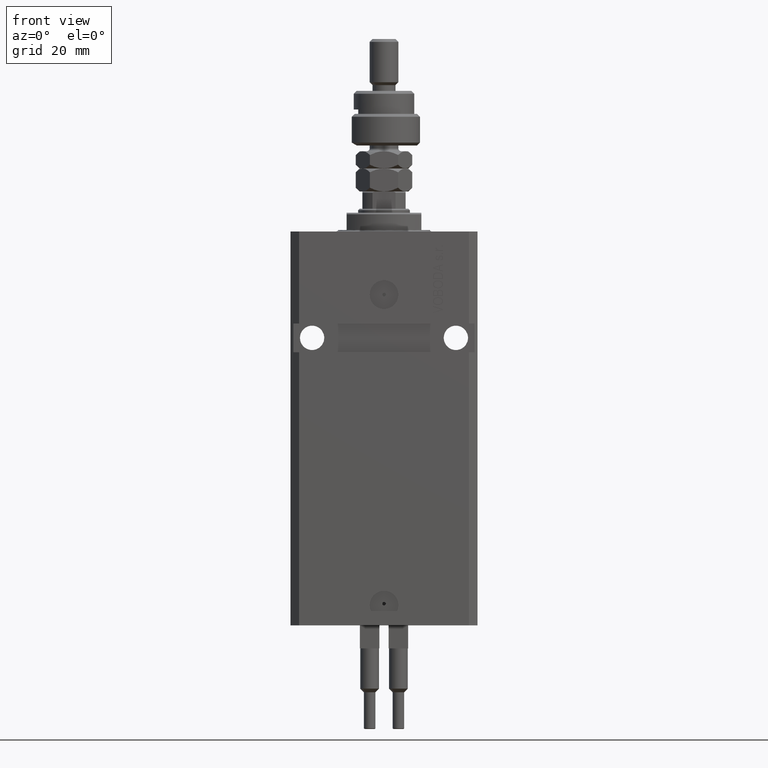
[diagram: clean part render]
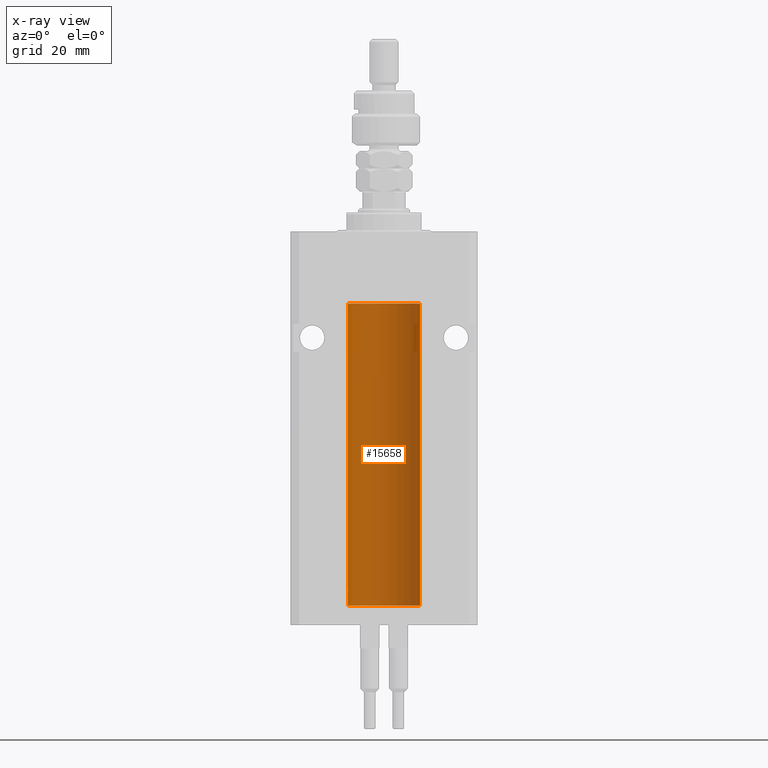
[diagram: x-ray — body ghosted, one internal face saturated and labeled with its STEP entity id]
A machine part, front view, then the same camera in x-ray: the body is ghosted and one INTERNAL B-rep face — a face not visible from any outside direction — is saturated and labeled: STEP entity #15658.
In plain terms, the highlighted cylindrical surface (edge-blend (fillet) strip) has radius 12.5 mm, axis along (0, 0, 1).
Its self-contained STEP definition (entity closure, byte-faithful):
#438 = DIRECTION ( 'NONE',  ( -0.000000000000000000, -0.000000000000000000, 1.000000000000000000 ) ) ;
#1190 = CARTESIAN_POINT ( 'NONE',  ( 12.50000000000000000, 0.000000000000000000, -25.10000000000000142 ) ) ;
#2139 = CARTESIAN_POINT ( 'NONE',  ( -12.48520330846398174, 0.6088355886774048376, -125.1632543185256310 ) ) ;
#2477 = FACE_OUTER_BOUND ( 'NONE', #42396, .T. ) ;
#2650 = CARTESIAN_POINT ( 'NONE',  ( -12.49631005746706691, 0.3253680783018559897, -125.5585674046538998 ) ) ;
#2895 = CARTESIAN_POINT ( 'NONE',  ( -12.48436813453758631, 0.6249418250771061611, -124.8366899679892441 ) ) ;
#3228 = DIRECTION ( 'NONE',  ( -0.000000000000000000, -0.000000000000000000, 1.000000000000000000 ) ) ;
#5157 = EDGE_CURVE ( 'NONE', #21477, #39715, #38554, .T. ) ;
#6803 = CARTESIAN_POINT ( 'NONE',  ( 12.50000000000000000, 0.000000000000000000, -130.0999999999999943 ) ) ;
#6832 = DIRECTION ( 'NONE',  ( 1.000000000000000000, 0.000000000000000000, 0.000000000000000000 ) ) ;
#7333 = EDGE_CURVE ( 'NONE', #33625, #10084, #43596, .T. ) ;
#8391 = CARTESIAN_POINT ( 'NONE',  ( -12.50000000000000000, 1.530808498934191521E-15, -25.10000000000000142 ) ) ;
#10084 = VERTEX_POINT ( 'NONE', #8391 ) ;
#10572 = CARTESIAN_POINT ( 'NONE',  ( 0.000000000000000000, 0.000000000000000000, -25.10000000000000142 ) ) ;
#11813 = CARTESIAN_POINT ( 'NONE',  ( -12.50000000000000000, 1.530808498934191521E-15, -130.0999999999999943 ) ) ;
#13170 = ORIENTED_EDGE ( 'NONE', *, *, #44469, .T. ) ;
#14274 = CARTESIAN_POINT ( 'NONE',  ( -12.50000000000000000, -1.890568805888175348E-14, -124.3750000000000000 ) ) ;
#14706 = CARTESIAN_POINT ( 'NONE',  ( -12.49422197749723829, 0.3843754434364221040, -124.5004709956809705 ) ) ;
#15658 = ADVANCED_FACE ( 'NONE', ( #2477 ), #22754, .F. ) ;
#16383 = CARTESIAN_POINT ( 'NONE',  ( -12.50000000000017941, 3.883381307462307207E-13, -125.6250000000035953 ) ) ;
#16700 = ORIENTED_EDGE ( 'NONE', *, *, #7333, .F. ) ;
#17473 = VERTEX_POINT ( 'NONE', #16383 ) ;
#17684 = VECTOR ( 'NONE', #36935, 1000.000000000000000 ) ;
#17834 = AXIS2_PLACEMENT_3D ( 'NONE', #10572, #18786, #26759 ) ;
#18786 = DIRECTION ( 'NONE',  ( 0.000000000000000000, 0.000000000000000000, 1.000000000000000000 ) ) ;
#19275 = ORIENTED_EDGE ( 'NONE', *, *, #5157, .F. ) ;
#20670 = VECTOR ( 'NONE', #22465, 1000.000000000000000 ) ;
#21477 = VERTEX_POINT ( 'NONE', #26401 ) ;
#21739 = CARTESIAN_POINT ( 'NONE',  ( 0.000000000000000000, 0.000000000000000000, -130.0999999999999943 ) ) ;
#22216 = LINE ( 'NONE', #6803, #20670 ) ;
#22262 = CARTESIAN_POINT ( 'NONE',  ( -12.50000000000000000, 1.530808498934191521E-15, -130.0999999999999943 ) ) ;
#22465 = DIRECTION ( 'NONE',  ( -0.000000000000000000, -0.000000000000000000, 1.000000000000000000 ) ) ;
#22754 = CYLINDRICAL_SURFACE ( 'NONE', #44575, 12.50000000000000000 ) ;
#22962 = AXIS2_PLACEMENT_3D ( 'NONE', #26496, #30354, #38314 ) ;
#24285 = ORIENTED_EDGE ( 'NONE', *, *, #39326, .T. ) ;
#26286 = CARTESIAN_POINT ( 'NONE',  ( -12.49625855304193855, 0.3150454781037954621, -124.4540280029748658 ) ) ;
#26401 = CARTESIAN_POINT ( 'NONE',  ( 12.50000000000000000, 0.000000000000000000, -130.0999999999999943 ) ) ;
#26478 = ORIENTED_EDGE ( 'NONE', *, *, #35926, .T. ) ;
#26496 = CARTESIAN_POINT ( 'NONE',  ( 0.000000000000000000, 0.000000000000000000, -130.0999999999999943 ) ) ;
#26759 = DIRECTION ( 'NONE',  ( 1.000000000000000000, 0.000000000000000000, 0.000000000000000000 ) ) ;
#27297 = ORIENTED_EDGE ( 'NONE', *, *, #41080, .F. ) ;
#27643 = B_SPLINE_CURVE_WITH_KNOTS ( 'NONE', 3,
 ( #41694, #45050, #37354, #26286, #14706, #42196, #2895, #30143, #2139, #38362, #49652, #2650, #45801, #46057 ),
 .UNSPECIFIED., .F., .F.,
 ( 4, 2, 2, 2, 2, 2, 4 ),
 ( 3.496117753580553008E-18, 0.0002442924852390892100, 0.0004885849704781749505, 0.0009771699409563759219, 0.001221462426195476462, 0.001465754911434576785, 0.001954339881912777865 ),
 .UNSPECIFIED. ) ;
#30143 = CARTESIAN_POINT ( 'NONE',  ( -12.48436376893640265, 0.6250290278979852010, -125.0813208282447135 ) ) ;
#30354 = DIRECTION ( 'NONE',  ( 0.000000000000000000, 0.000000000000000000, 1.000000000000000000 ) ) ;
#31271 = VECTOR ( 'NONE', #438, 1000.000000000000000 ) ;
#33625 = VERTEX_POINT ( 'NONE', #14274 ) ;
#35926 = EDGE_CURVE ( 'NONE', #21477, #47421, #22216, .T. ) ;
#36935 = DIRECTION ( 'NONE',  ( -0.000000000000000000, -0.000000000000000000, 1.000000000000000000 ) ) ;
#37354 = CARTESIAN_POINT ( 'NONE',  ( -12.49915784441387068, 0.1636601911727856851, -124.3912681898942765 ) ) ;
#38314 = DIRECTION ( 'NONE',  ( 1.000000000000000000, 0.000000000000000000, 0.000000000000000000 ) ) ;
#38362 = CARTESIAN_POINT ( 'NONE',  ( -12.48809959379011758, 0.5462151254764870956, -125.3146137048161677 ) ) ;
#38554 = CIRCLE ( 'NONE', #22962, 12.50000000000000000 ) ;
#38731 = CARTESIAN_POINT ( 'NONE',  ( -12.50000000000000000, 1.530808498934191521E-15, -130.0999999999999943 ) ) ;
#39326 = EDGE_CURVE ( 'NONE', #33625, #17473, #27643, .T. ) ;
#39715 = VERTEX_POINT ( 'NONE', #11813 ) ;
#41080 = EDGE_CURVE ( 'NONE', #39715, #17473, #45131, .T. ) ;
#41694 = CARTESIAN_POINT ( 'NONE',  ( -12.50000000000000000, -1.890568805888175348E-14, -124.3750000000000000 ) ) ;
#42196 = CARTESIAN_POINT ( 'NONE',  ( -12.48810268015257563, 0.5573155909661203777, -124.6734741009386909 ) ) ;
#42396 = EDGE_LOOP ( 'NONE', ( #27297, #19275, #26478, #13170, #16700, #24285 ) ) ;
#43596 = LINE ( 'NONE', #38731, #31271 ) ;
#44469 = EDGE_CURVE ( 'NONE', #47421, #10084, #50677, .T. ) ;
#44575 = AXIS2_PLACEMENT_3D ( 'NONE', #21739, #3228, #6832 ) ;
#45050 = CARTESIAN_POINT ( 'NONE',  ( -12.50000000000000178, 0.08260426088727608473, -124.3749999999999858 ) ) ;
#45131 = LINE ( 'NONE', #22262, #17684 ) ;
#45801 = CARTESIAN_POINT ( 'NONE',  ( -12.49999999999999467, 0.1631761135151251485, -125.6249999999999005 ) ) ;
#46057 = CARTESIAN_POINT ( 'NONE',  ( -12.50000000000017941, 3.883381307462307207E-13, -125.6250000000035953 ) ) ;
#47421 = VERTEX_POINT ( 'NONE', #1190 ) ;
#49652 = CARTESIAN_POINT ( 'NONE',  ( -12.49011732893843707, 0.5003763274120269777, -125.3834811128928806 ) ) ;
#50677 = CIRCLE ( 'NONE', #17834, 12.50000000000000000 ) ;